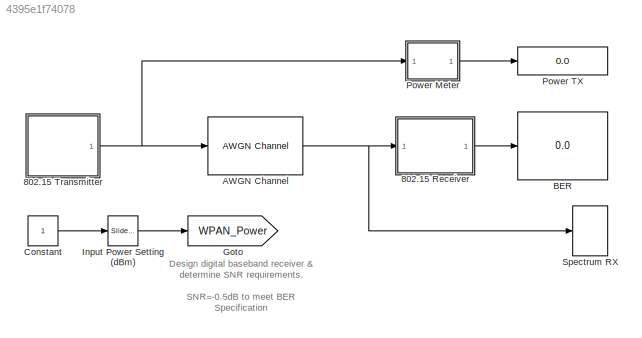
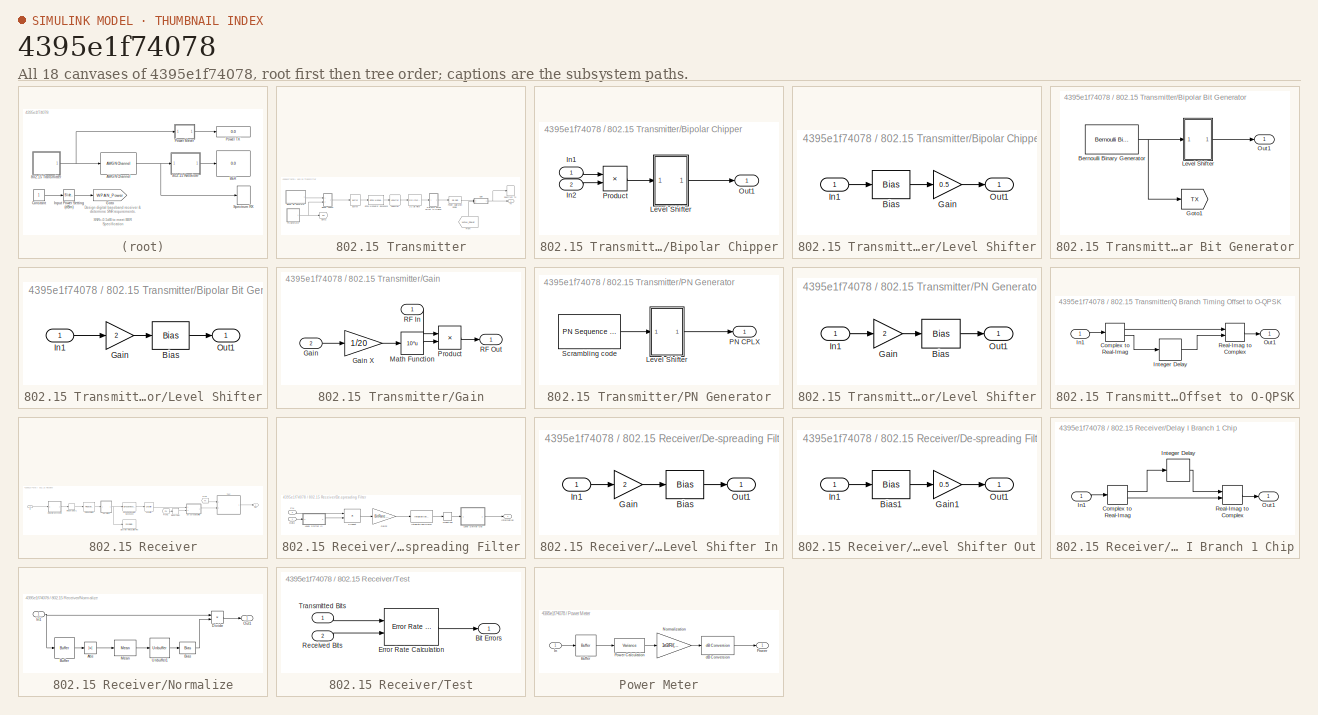
[diagram: thumbnail index - all 18 canvases of the model, root first then tree order]
MODEL slx_4395e1f74078
KIND model
CONFIG AbsTol = auto
CONFIG EnableMultiTasking = on
CONFIG FixedStep = 1/(PSF_SampPerSym*Rsymbol*2)
CONFIG InitFcn = x=linspace(0,1,OS);\nweights=sin(pi*x);
CONFIG MaxStep = auto
CONFIG MinStep = auto
CONFIG PreLoadFcn = %Rates\nBitRate=250e3;\nChipRate=2e6;\nSymRate=ChipRate/2;\nRX_ChipDelay=6;\n\n\n%Pulse shaping filter\nOS=32;\n\n%Input Power\nPin=-40;\n\nSNR=-0.5;\n\nfc_RF=2450e6;
CONFIG RelTol = 1e-3
CONFIG SampleTimeConstraint = Unconstrained
CONFIG Solver = VariableStepDiscrete
CONFIG SolverName = VariableStepDiscrete
CONFIG StartTime = 0.0
CONFIG StopTime = inf
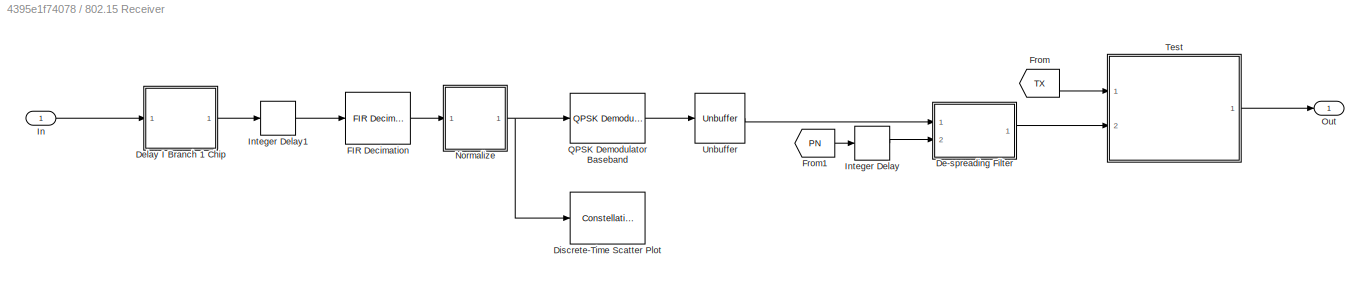
BLOCK [SubSystem] 802.15 Receiver
  Ports = [1, 1]
  RequestExecContextInheritance = off
  Variant = off
BLOCK [SubSystem] 802.15 Receiver/De-spreading Filter
  Ports = [2, 1]
  RequestExecContextInheritance = off
  Variant = off
BLOCK [Inport] 802.15 Receiver/De-spreading Filter/Data
  IconDisplay = Port number
BLOCK [Gain] 802.15 Receiver/De-spreading Filter/Gain2
  Gain = BitRate/ChipRate
BLOCK [Outport] 802.15 Receiver/De-spreading Filter/Information
  IconDisplay = Port number
BLOCK [Reference] 802.15 Receiver/De-spreading Filter/Integrate and Dump  REF=commfilt2/Integrate
and Dump
  Ports = [1, 1]
  SourceBlock = commfilt2/Integrate\nand Dump
  SourceProductBaseCode = CM
  SourceProductName = Communications System Toolbox
  SourceType = Integrate and Dump
BLOCK [SubSystem] 802.15 Receiver/De-spreading Filter/Level Shifter In
  Ports = [1, 1]
  RequestExecContextInheritance = off
  Variant = off
BLOCK [Bias] 802.15 Receiver/De-spreading Filter/Level Shifter In/Bias
  Bias = -1
  SaturateOnIntegerOverflow = off
BLOCK [Gain] 802.15 Receiver/De-spreading Filter/Level Shifter In/Gain
  Gain = 2
  OutDataTypeStr = Inherit: Inherit via internal rule
  ParamDataTypeStr = Inherit: Inherit via internal rule
  SaturateOnIntegerOverflow = off
BLOCK [Inport] 802.15 Receiver/De-spreading Filter/Level Shifter In/In1
  IconDisplay = Port number
BLOCK [Outport] 802.15 Receiver/De-spreading Filter/Level Shifter In/Out1
  IconDisplay = Port number
BLOCK [SubSystem] 802.15 Receiver/De-spreading Filter/Level Shifter Out
  Ports = [1, 1]
  RequestExecContextInheritance = off
  Variant = off
BLOCK [Bias] 802.15 Receiver/De-spreading Filter/Level Shifter Out/Bias1
  Bias = 1
  SaturateOnIntegerOverflow = off
BLOCK [Gain] 802.15 Receiver/De-spreading Filter/Level Shifter Out/Gain1
  Gain = 0.5
  OutDataTypeStr = Inherit: Inherit via internal rule
  ParamDataTypeStr = Inherit: Inherit via internal rule
  SaturateOnIntegerOverflow = off
BLOCK [Inport] 802.15 Receiver/De-spreading Filter/Level Shifter Out/In1
  IconDisplay = Port number
BLOCK [Outport] 802.15 Receiver/De-spreading Filter/Level Shifter Out/Out1
  IconDisplay = Port number
BLOCK [Inport] 802.15 Receiver/De-spreading Filter/PN
  IconDisplay = Port number
  Port = 2
BLOCK [Product] 802.15 Receiver/De-spreading Filter/Product
  InputSameDT = off
  OutDataTypeStr = Inherit: Inherit via internal rule
  Ports = [2, 1]
  SaturateOnIntegerOverflow = off
BLOCK [Signum] 802.15 Receiver/De-spreading Filter/Quantizer
BLOCK [SubSystem] 802.15 Receiver/Delay I Branch 1 Chip
  Ports = [1, 1]
  RequestExecContextInheritance = off
  Variant = off
BLOCK [ComplexToRealImag] 802.15 Receiver/Delay I Branch 1 Chip/Complex to Real-Imag
  Ports = [1, 2]
BLOCK [Inport] 802.15 Receiver/Delay I Branch 1 Chip/In1
  IconDisplay = Port number
BLOCK [Delay] 802.15 Receiver/Delay I Branch 1 Chip/Integer Delay
  DelayLength = OS/2
  InputPortMap = u0
  Ports = [1, 1]
  UserDataPersistent = on
BLOCK [Outport] 802.15 Receiver/Delay I Branch 1 Chip/Out1
  IconDisplay = Port number
BLOCK [RealImagToComplex] 802.15 Receiver/Delay I Branch 1 Chip/Real-Imag to Complex
  Ports = [2, 1]
BLOCK [ConstellationDiagram] 802.15 Receiver/Discrete-Time Scatter Plot
  Ports = [1]
  ScopeSpecificationString = comm.scopes.ConstellationDiagramBlockCfg('CurrentConfiguration', extmgr.ConfigurationSet(extmgr.Configuration('Core','General UI',true,'ShowConfiguration',true),extmgr.Configuration('Core','Source UI',true,'ShowPlaybackCmdMode',false),extmgr.Configuration('Sources','Workspace',false),extmgr.Configuration('Sources','File',false),extmgr.Configuration('Sources','Simulink',false),extmgr.Configuration(...<+1693ch>
  Tag = ScatterPlot
BLOCK [Reference] 802.15 Receiver/FIR Decimation  REF=dspmlti4/FIR
Decimation
  Ports = [1, 1]
  SourceBlock = dspmlti4/FIR\nDecimation
  SourceProductBaseCode = DS
  SourceProductName = DSP System Toolbox
  SourceType = FIR Decimation
  UserDataPersistent = on
BLOCK [From] 802.15 Receiver/From
  GotoTag = TX
  TagVisibility = global
BLOCK [From] 802.15 Receiver/From1
  GotoTag = PN
  TagVisibility = global
BLOCK [Inport] 802.15 Receiver/In
  IconDisplay = Port number
BLOCK [Delay] 802.15 Receiver/Integer Delay
  DelayLength = RX_ChipDelay
  InputPortMap = u0
  Ports = [1, 1]
  UserDataPersistent = on
BLOCK [Delay] 802.15 Receiver/Integer Delay1
  DelayLength = OS/2-1
  InputPortMap = u0
  Ports = [1, 1]
  UserDataPersistent = on
BLOCK [SubSystem] 802.15 Receiver/Normalize
  Ports = [1, 1]
  RequestExecContextInheritance = off
  Variant = off
BLOCK [Abs] 802.15 Receiver/Normalize/Abs
  SaturateOnIntegerOverflow = off
BLOCK [Bias] 802.15 Receiver/Normalize/Bias
  Bias = eps
  SaturateOnIntegerOverflow = off
BLOCK [Buffer] 802.15 Receiver/Normalize/Buffer
BLOCK [Product] 802.15 Receiver/Normalize/Divide
  InputSameDT = off
  Inputs = */
  OutDataTypeStr = Inherit: Inherit via internal rule
  Ports = [2, 1]
  RndMeth = Floor
  SaturateOnIntegerOverflow = off
BLOCK [Inport] 802.15 Receiver/Normalize/In1
  IconDisplay = Port number
BLOCK [Reference] 802.15 Receiver/Normalize/Mean  REF=dspstat3/Mean
  Ports = [1, 1]
  SourceBlock = dspstat3/Mean
  SourceProductBaseCode = DS
  SourceProductName = DSP System Toolbox
  SourceType = Mean
  UserDataPersistent = on
BLOCK [Outport] 802.15 Receiver/Normalize/Out1
  IconDisplay = Port number
BLOCK [Unbuffer] 802.15 Receiver/Normalize/Unbuffer1
  Ports = [1, 1]
BLOCK [Outport] 802.15 Receiver/Out
  IconDisplay = Port number
BLOCK [Reference] 802.15 Receiver/QPSK Demodulator Baseband  REF=commdigbbndpm3/QPSK
Demodulator
Baseband
  Ports = [1, 1]
  SourceBlock = commdigbbndpm3/QPSK\nDemodulator\nBaseband
  SourceProductBaseCode = CM
  SourceProductName = Communications System Toolbox
  SourceType = QPSK Demodulator Baseband
BLOCK [SubSystem] 802.15 Receiver/Test
  Ports = [2, 1]
  RequestExecContextInheritance = off
  Variant = off
BLOCK [Outport] 802.15 Receiver/Test/Bit Errors
  IconDisplay = Port number
BLOCK [Reference] 802.15 Receiver/Test/Error Rate Calculation  REF=commsink2/Error Rate
Calculation
  Ports = [2, 1]
  SourceBlock = commsink2/Error Rate\nCalculation
  SourceProductBaseCode = CM
  SourceProductName = Communications System Toolbox
  SourceType = Error Rate Calculation
BLOCK [Inport] 802.15 Receiver/Test/Received Bits
  IconDisplay = Port number
  Port = 2
BLOCK [Inport] 802.15 Receiver/Test/Transmitted Bits
  IconDisplay = Port number
BLOCK [Unbuffer] 802.15 Receiver/Unbuffer
  Ports = [1, 1]
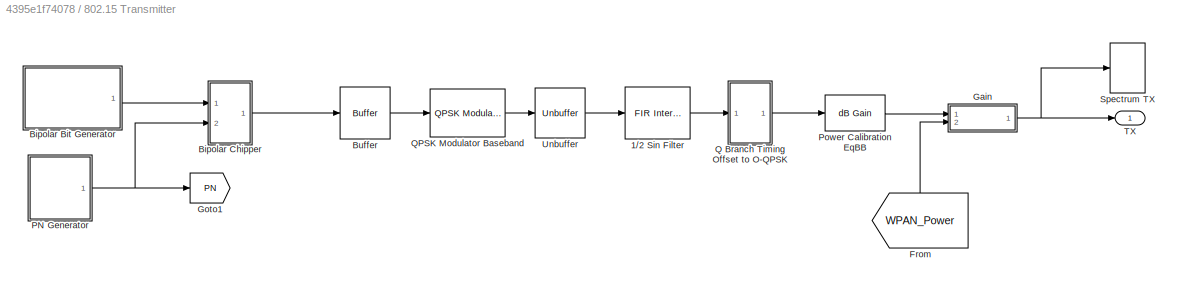
BLOCK [SubSystem] 802.15 Transmitter
  Ports = [0, 1]
  RequestExecContextInheritance = off
  Variant = off
BLOCK [Reference] 802.15 Transmitter/1//2 Sin Filter  REF=dspmlti4/FIR
Interpolation
  Ports = [1, 1]
  SourceBlock = dspmlti4/FIR\nInterpolation
  SourceProductBaseCode = DS
  SourceProductName = DSP System Toolbox
  SourceType = FIR Interpolation
  UserDataPersistent = on
BLOCK [SubSystem] 802.15 Transmitter/Bipolar Bit Generator
  Ports = [0, 1]
  RequestExecContextInheritance = off
  Variant = off
BLOCK [Reference] 802.15 Transmitter/Bipolar Bit Generator/Bernoulli Binary Generator  REF=commrandsrc2/Bernoulli Binary
Generator
  Ports = [0, 1]
  SourceBlock = commrandsrc2/Bernoulli Binary\nGenerator
  SourceType = Bernoulli Binary Generator
BLOCK [Goto] 802.15 Transmitter/Bipolar Bit Generator/Goto1
  GotoTag = TX
  TagVisibility = global
BLOCK [SubSystem] 802.15 Transmitter/Bipolar Bit Generator/Level Shifter
  Ports = [1, 1]
  RequestExecContextInheritance = off
  Variant = off
BLOCK [Bias] 802.15 Transmitter/Bipolar Bit Generator/Level Shifter/Bias
  Bias = -1
  SaturateOnIntegerOverflow = off
BLOCK [Gain] 802.15 Transmitter/Bipolar Bit Generator/Level Shifter/Gain
  Gain = 2
  OutDataTypeStr = Inherit: Inherit via internal rule
  ParamDataTypeStr = Inherit: Inherit via internal rule
  SaturateOnIntegerOverflow = off
BLOCK [Inport] 802.15 Transmitter/Bipolar Bit Generator/Level Shifter/In1
  IconDisplay = Port number
BLOCK [Outport] 802.15 Transmitter/Bipolar Bit Generator/Level Shifter/Out1
  IconDisplay = Port number
BLOCK [Outport] 802.15 Transmitter/Bipolar Bit Generator/Out1
  IconDisplay = Port number
BLOCK [SubSystem] 802.15 Transmitter/Bipolar Chipper
  Ports = [2, 1]
  RequestExecContextInheritance = off
  Variant = off
BLOCK [Inport] 802.15 Transmitter/Bipolar Chipper/In1
  IconDisplay = Port number
BLOCK [Inport] 802.15 Transmitter/Bipolar Chipper/In2
  IconDisplay = Port number
  Port = 2
BLOCK [SubSystem] 802.15 Transmitter/Bipolar Chipper/Level Shifter
  Ports = [1, 1]
  RequestExecContextInheritance = off
  Variant = off
BLOCK [Bias] 802.15 Transmitter/Bipolar Chipper/Level Shifter/Bias
  Bias = 1
  SaturateOnIntegerOverflow = off
BLOCK [Gain] 802.15 Transmitter/Bipolar Chipper/Level Shifter/Gain
  Gain = 0.5
  OutDataTypeStr = Inherit: Inherit via internal rule
  ParamDataTypeStr = Inherit: Inherit via internal rule
  SaturateOnIntegerOverflow = off
BLOCK [Inport] 802.15 Transmitter/Bipolar Chipper/Level Shifter/In1
  IconDisplay = Port number
BLOCK [Outport] 802.15 Transmitter/Bipolar Chipper/Level Shifter/Out1
  IconDisplay = Port number
BLOCK [Outport] 802.15 Transmitter/Bipolar Chipper/Out1
  IconDisplay = Port number
BLOCK [Product] 802.15 Transmitter/Bipolar Chipper/Product
  InputSameDT = off
  OutDataTypeStr = Inherit: Inherit via internal rule
  Ports = [2, 1]
  SaturateOnIntegerOverflow = off
BLOCK [Buffer] 802.15 Transmitter/Buffer
  N = 2
BLOCK [From] 802.15 Transmitter/From
  GotoTag = WPAN_Power
  TagVisibility = global
BLOCK [SubSystem] 802.15 Transmitter/Gain
  Ports = [2, 1]
  RequestExecContextInheritance = off
  Variant = off
BLOCK [Inport] 802.15 Transmitter/Gain/Gain
  IconDisplay = Port number
  Port = 2
BLOCK [Gain] 802.15 Transmitter/Gain/Gain X
  Gain = 1/20
  OutDataTypeStr = Inherit: Inherit via internal rule
  ParamDataTypeStr = Inherit: Inherit via internal rule
  SaturateOnIntegerOverflow = off
BLOCK [Math] 802.15 Transmitter/Gain/Math Function
  Operator = 10^u
  Ports = [1, 1]
BLOCK [Product] 802.15 Transmitter/Gain/Product
  InputSameDT = off
  OutDataTypeStr = Inherit: Inherit via internal rule
  Ports = [2, 1]
  SaturateOnIntegerOverflow = off
BLOCK [Inport] 802.15 Transmitter/Gain/RF In
  IconDisplay = Port number
BLOCK [Outport] 802.15 Transmitter/Gain/RF Out
  IconDisplay = Port number
BLOCK [Goto] 802.15 Transmitter/Goto1
  GotoTag = PN
  TagVisibility = global
BLOCK [SubSystem] 802.15 Transmitter/PN Generator
  Ports = [0, 1]
  RequestExecContextInheritance = off
  Variant = off
BLOCK [SubSystem] 802.15 Transmitter/PN Generator/Level Shifter
  Ports = [1, 1]
  RequestExecContextInheritance = off
  Variant = off
BLOCK [Bias] 802.15 Transmitter/PN Generator/Level Shifter/Bias
  Bias = -1
  SaturateOnIntegerOverflow = off
BLOCK [Gain] 802.15 Transmitter/PN Generator/Level Shifter/Gain
  Gain = 2
  OutDataTypeStr = Inherit: Inherit via internal rule
  ParamDataTypeStr = Inherit: Inherit via internal rule
  SaturateOnIntegerOverflow = off
BLOCK [Inport] 802.15 Transmitter/PN Generator/Level Shifter/In1
  IconDisplay = Port number
BLOCK [Outport] 802.15 Transmitter/PN Generator/Level Shifter/Out1
  IconDisplay = Port number
BLOCK [Outport] 802.15 Transmitter/PN Generator/PN CPLX
  IconDisplay = Port number
BLOCK [Reference] 802.15 Transmitter/PN Generator/Scrambling code  REF=commseqgen2/PN Sequence
Generator
  Ports = [0, 1]
  SourceBlock = commseqgen2/PN Sequence\nGenerator
  SourceType = PN Sequence Generator
BLOCK [Reference] 802.15 Transmitter/Power Calibration EqBB  REF=dspmathops/dB Gain
  Ports = [1, 1]
  SourceBlock = dspmathops/dB Gain
  SourceProductBaseCode = DS
  SourceProductName = DSP System Toolbox
  SourceType = dB Gain
BLOCK [SubSystem] 802.15 Transmitter/Q Branch Timing Offset to O-QPSK
  Ports = [1, 1]
  RequestExecContextInheritance = off
  Variant = off
BLOCK [ComplexToRealImag] 802.15 Transmitter/Q Branch Timing Offset to O-QPSK/Complex to Real-Imag
  Ports = [1, 2]
BLOCK [Inport] 802.15 Transmitter/Q Branch Timing Offset to O-QPSK/In1
  IconDisplay = Port number
BLOCK [Delay] 802.15 Transmitter/Q Branch Timing Offset to O-QPSK/Integer Delay
  DelayLength = OS/2
  InputPortMap = u0
  Ports = [1, 1]
  UserDataPersistent = on
BLOCK [Outport] 802.15 Transmitter/Q Branch Timing Offset to O-QPSK/Out1
  IconDisplay = Port number
BLOCK [RealImagToComplex] 802.15 Transmitter/Q Branch Timing Offset to O-QPSK/Real-Imag to Complex
  Ports = [2, 1]
BLOCK [Reference] 802.15 Transmitter/QPSK Modulator Baseband  REF=commdigbbndpm3/QPSK
Modulator
Baseband
  Ports = [1, 1]
  SourceBlock = commdigbbndpm3/QPSK\nModulator\nBaseband
  SourceProductBaseCode = CM
  SourceProductName = Communications System Toolbox
  SourceType = QPSK Modulator Baseband
BLOCK [SpectrumAnalyzer] 802.15 Transmitter/Spectrum TX
  NumInputPorts = 1
  Ports = [1]
  ScopeSpecificationString = spbscopes.SpectrumAnalyzerBlockCfg('CurrentConfiguration', extmgr.ConfigurationSet(extmgr.Configuration('Core','General UI',true,'DisplayFullSourceName',true,'FigureColor',[0.156862745098039 0.156862745098039 0.156862745098039]),extmgr.Configuration('Core','Source UI',true),extmgr.Configuration('Sources','WiredSimulink',true),extmgr.Configuration('Visuals','Spectrum',true,'AxesProperties',struct('...<+2152ch>
BLOCK [Outport] 802.15 Transmitter/TX
  IconDisplay = Port number
BLOCK [Unbuffer] 802.15 Transmitter/Unbuffer
  Ports = [1, 1]
BLOCK [Reference] AWGN Channel  REF=commchan3/AWGN
Channel
  Ports = [1, 1]
  SourceBlock = commchan3/AWGN\nChannel
  SourceProductBaseCode = CM
  SourceProductName = Communications System Toolbox
  SourceType = AWGN Channel
  UserDataPersistent = on
BLOCK [Display] BER
  Decimation = 1
  Ports = [1]
BLOCK [Constant] Constant
BLOCK [Goto] Goto
  GotoTag = WPAN_Power
  TagVisibility = global
BLOCK [Reference] Input Power Setting (dBm)  REF=simulink/Math
Operations/Slider
Gain
  Ports = [1, 1]
  SourceBlock = simulink/Math\nOperations/Slider\nGain
  SourceProductBaseCode = SL
  SourceProductName = Simulink
  SourceType = Slider Gain
BLOCK [SubSystem] Power Meter
  Ports = [1, 1]
  RequestExecContextInheritance = off
  Variant = off
BLOCK [Buffer] Power Meter/Buffer
  N = buffer_sz
BLOCK [Inport] Power Meter/In
  IconDisplay = Port number
BLOCK [Gain] Power Meter/Normalization
  Gain = 1e3/R/(1+PB)
  OutDataTypeStr = Inherit: Inherit via internal rule
  ParamDataTypeStr = Inherit: Inherit via internal rule
  SaturateOnIntegerOverflow = off
BLOCK [Outport] Power Meter/Power
  IconDisplay = Port number
BLOCK [Reference] Power Meter/Power Calculation  REF=dspstat3/Variance
  Ports = [1, 1]
  SourceBlock = dspstat3/Variance
  SourceProductBaseCode = DS
  SourceProductName = DSP System Toolbox
  SourceType = Variance
  UserDataPersistent = on
BLOCK [Reference] Power Meter/dB Conversion  REF=dspmathops/dB Conversion
  Ports = [1, 1]
  SourceBlock = dspmathops/dB Conversion
  SourceProductBaseCode = DS
  SourceProductName = DSP System Toolbox
  SourceType = dB Conversion
BLOCK [Display] Power TX
  Decimation = 1
  Ports = [1]
BLOCK [SpectrumAnalyzer] Spectrum RX
  NumInputPorts = 1
  Ports = [1]
  ScopeSpecificationString = spbscopes.SpectrumAnalyzerBlockCfg('CurrentConfiguration', extmgr.ConfigurationSet(extmgr.Configuration('Core','General UI',true,'DisplayFullSourceName',true,'FigureColor',[0.156862745098039 0.156862745098039 0.156862745098039]),extmgr.Configuration('Core','Source UI',true),extmgr.Configuration('Sources','WiredSimulink',true),extmgr.Configuration('Visuals','Spectrum',true,'AxesProperties',struct('...<+2066ch>
ANNOTATION (root): Design digital baseband receiver & determine SNR requirements.
ANNOTATION (root): SNR=-0.5dB to meet BER Specification
LINE 802.15 Receiver/De-spreading Filter/Data:1 -> 802.15 Receiver/De-spreading Filter/Level Shifter In:1
LINE 802.15 Receiver/De-spreading Filter/Gain2:1 -> 802.15 Receiver/De-spreading Filter/Integrate and Dump:1
LINE 802.15 Receiver/De-spreading Filter/Integrate and Dump:1 -> 802.15 Receiver/De-spreading Filter/Quantizer:1
LINE 802.15 Receiver/De-spreading Filter/Level Shifter In/Bias:1 -> 802.15 Receiver/De-spreading Filter/Level Shifter In/Out1:1
LINE 802.15 Receiver/De-spreading Filter/Level Shifter In/Gain:1 -> 802.15 Receiver/De-spreading Filter/Level Shifter In/Bias:1
LINE 802.15 Receiver/De-spreading Filter/Level Shifter In/In1:1 -> 802.15 Receiver/De-spreading Filter/Level Shifter In/Gain:1
LINE 802.15 Receiver/De-spreading Filter/Level Shifter In:1 -> 802.15 Receiver/De-spreading Filter/Product:2
LINE 802.15 Receiver/De-spreading Filter/Level Shifter Out/Bias1:1 -> 802.15 Receiver/De-spreading Filter/Level Shifter Out/Gain1:1
LINE 802.15 Receiver/De-spreading Filter/Level Shifter Out/Gain1:1 -> 802.15 Receiver/De-spreading Filter/Level Shifter Out/Out1:1
LINE 802.15 Receiver/De-spreading Filter/Level Shifter Out/In1:1 -> 802.15 Receiver/De-spreading Filter/Level Shifter Out/Bias1:1
LINE 802.15 Receiver/De-spreading Filter/Level Shifter Out:1 -> 802.15 Receiver/De-spreading Filter/Information:1
LINE 802.15 Receiver/De-spreading Filter/PN:1 -> 802.15 Receiver/De-spreading Filter/Product:1
LINE 802.15 Receiver/De-spreading Filter/Product:1 -> 802.15 Receiver/De-spreading Filter/Gain2:1
LINE 802.15 Receiver/De-spreading Filter/Quantizer:1 -> 802.15 Receiver/De-spreading Filter/Level Shifter Out:1
LINE 802.15 Receiver/De-spreading Filter:1 -> 802.15 Receiver/Test:2
LINE 802.15 Receiver/Delay I Branch 1 Chip/Complex to Real-Imag:1 -> 802.15 Receiver/Delay I Branch 1 Chip/Integer Delay:1
LINE 802.15 Receiver/Delay I Branch 1 Chip/Complex to Real-Imag:2 -> 802.15 Receiver/Delay I Branch 1 Chip/Real-Imag to Complex:2
LINE 802.15 Receiver/Delay I Branch 1 Chip/In1:1 -> 802.15 Receiver/Delay I Branch 1 Chip/Complex to Real-Imag:1
LINE 802.15 Receiver/Delay I Branch 1 Chip/Integer Delay:1 -> 802.15 Receiver/Delay I Branch 1 Chip/Real-Imag to Complex:1
LINE 802.15 Receiver/Delay I Branch 1 Chip/Real-Imag to Complex:1 -> 802.15 Receiver/Delay I Branch 1 Chip/Out1:1
LINE 802.15 Receiver/Delay I Branch 1 Chip:1 -> 802.15 Receiver/Integer Delay1:1
LINE 802.15 Receiver/FIR Decimation:1 -> 802.15 Receiver/Normalize:1
LINE 802.15 Receiver/From1:1 -> 802.15 Receiver/Integer Delay:1
LINE 802.15 Receiver/From:1 -> 802.15 Receiver/Test:1
LINE 802.15 Receiver/In:1 -> 802.15 Receiver/Delay I Branch 1 Chip:1
LINE 802.15 Receiver/Integer Delay1:1 -> 802.15 Receiver/FIR Decimation:1
LINE 802.15 Receiver/Integer Delay:1 -> 802.15 Receiver/De-spreading Filter:2
LINE 802.15 Receiver/Normalize/Abs:1 -> 802.15 Receiver/Normalize/Mean:1
LINE 802.15 Receiver/Normalize/Bias:1 -> 802.15 Receiver/Normalize/Divide:2
LINE 802.15 Receiver/Normalize/Buffer:1 -> 802.15 Receiver/Normalize/Abs:1
LINE 802.15 Receiver/Normalize/Divide:1 -> 802.15 Receiver/Normalize/Out1:1
NET 802.15 Receiver/Normalize/In1:1 -> 802.15 Receiver/Normalize/Buffer:1, 802.15 Receiver/Normalize/Divide:1
LINE 802.15 Receiver/Normalize/Mean:1 -> 802.15 Receiver/Normalize/Unbuffer1:1
LINE 802.15 Receiver/Normalize/Unbuffer1:1 -> 802.15 Receiver/Normalize/Bias:1
NET 802.15 Receiver/Normalize:1 -> 802.15 Receiver/Discrete-Time Scatter Plot:1, 802.15 Receiver/QPSK Demodulator Baseband:1
LINE 802.15 Receiver/QPSK Demodulator Baseband:1 -> 802.15 Receiver/Unbuffer:1
LINE 802.15 Receiver/Test/Error Rate Calculation:1 -> 802.15 Receiver/Test/Bit Errors:1
LINE 802.15 Receiver/Test/Received Bits:1 -> 802.15 Receiver/Test/Error Rate Calculation:2
LINE 802.15 Receiver/Test/Transmitted Bits:1 -> 802.15 Receiver/Test/Error Rate Calculation:1
LINE 802.15 Receiver/Test:1 -> 802.15 Receiver/Out:1
LINE 802.15 Receiver/Unbuffer:1 -> 802.15 Receiver/De-spreading Filter:1
LINE 802.15 Receiver:1 -> BER:1
LINE 802.15 Transmitter/1//2 Sin Filter:1 -> 802.15 Transmitter/Q Branch Timing Offset to O-QPSK:1
NET 802.15 Transmitter/Bipolar Bit Generator/Bernoulli Binary Generator:1 -> 802.15 Transmitter/Bipolar Bit Generator/Goto1:1, 802.15 Transmitter/Bipolar Bit Generator/Level Shifter:1
LINE 802.15 Transmitter/Bipolar Bit Generator/Level Shifter/Bias:1 -> 802.15 Transmitter/Bipolar Bit Generator/Level Shifter/Out1:1
LINE 802.15 Transmitter/Bipolar Bit Generator/Level Shifter/Gain:1 -> 802.15 Transmitter/Bipolar Bit Generator/Level Shifter/Bias:1
LINE 802.15 Transmitter/Bipolar Bit Generator/Level Shifter/In1:1 -> 802.15 Transmitter/Bipolar Bit Generator/Level Shifter/Gain:1
LINE 802.15 Transmitter/Bipolar Bit Generator/Level Shifter:1 -> 802.15 Transmitter/Bipolar Bit Generator/Out1:1
LINE 802.15 Transmitter/Bipolar Bit Generator:1 -> 802.15 Transmitter/Bipolar Chipper:1
LINE 802.15 Transmitter/Bipolar Chipper/In1:1 -> 802.15 Transmitter/Bipolar Chipper/Product:1
LINE 802.15 Transmitter/Bipolar Chipper/In2:1 -> 802.15 Transmitter/Bipolar Chipper/Product:2
LINE 802.15 Transmitter/Bipolar Chipper/Level Shifter/Bias:1 -> 802.15 Transmitter/Bipolar Chipper/Level Shifter/Gain:1
LINE 802.15 Transmitter/Bipolar Chipper/Level Shifter/Gain:1 -> 802.15 Transmitter/Bipolar Chipper/Level Shifter/Out1:1
LINE 802.15 Transmitter/Bipolar Chipper/Level Shifter/In1:1 -> 802.15 Transmitter/Bipolar Chipper/Level Shifter/Bias:1
LINE 802.15 Transmitter/Bipolar Chipper/Level Shifter:1 -> 802.15 Transmitter/Bipolar Chipper/Out1:1
LINE 802.15 Transmitter/Bipolar Chipper/Product:1 -> 802.15 Transmitter/Bipolar Chipper/Level Shifter:1
LINE 802.15 Transmitter/Bipolar Chipper:1 -> 802.15 Transmitter/Buffer:1
LINE 802.15 Transmitter/Buffer:1 -> 802.15 Transmitter/QPSK Modulator Baseband:1
LINE 802.15 Transmitter/From:1 -> 802.15 Transmitter/Gain:2
LINE 802.15 Transmitter/Gain/Gain X:1 -> 802.15 Transmitter/Gain/Math Function:1
LINE 802.15 Transmitter/Gain/Gain:1 -> 802.15 Transmitter/Gain/Gain X:1
LINE 802.15 Transmitter/Gain/Math Function:1 -> 802.15 Transmitter/Gain/Product:2
LINE 802.15 Transmitter/Gain/Product:1 -> 802.15 Transmitter/Gain/RF Out:1
LINE 802.15 Transmitter/Gain/RF In:1 -> 802.15 Transmitter/Gain/Product:1
NET 802.15 Transmitter/Gain:1 -> 802.15 Transmitter/Spectrum TX:1, 802.15 Transmitter/TX:1
LINE 802.15 Transmitter/PN Generator/Level Shifter/Bias:1 -> 802.15 Transmitter/PN Generator/Level Shifter/Out1:1
LINE 802.15 Transmitter/PN Generator/Level Shifter/Gain:1 -> 802.15 Transmitter/PN Generator/Level Shifter/Bias:1
LINE 802.15 Transmitter/PN Generator/Level Shifter/In1:1 -> 802.15 Transmitter/PN Generator/Level Shifter/Gain:1
LINE 802.15 Transmitter/PN Generator/Level Shifter:1 -> 802.15 Transmitter/PN Generator/PN CPLX:1
LINE 802.15 Transmitter/PN Generator/Scrambling code:1 -> 802.15 Transmitter/PN Generator/Level Shifter:1
NET 802.15 Transmitter/PN Generator:1 -> 802.15 Transmitter/Bipolar Chipper:2, 802.15 Transmitter/Goto1:1
LINE 802.15 Transmitter/Power Calibration EqBB:1 -> 802.15 Transmitter/Gain:1
LINE 802.15 Transmitter/Q Branch Timing Offset to O-QPSK/Complex to Real-Imag:1 -> 802.15 Transmitter/Q Branch Timing Offset to O-QPSK/Real-Imag to Complex:1
LINE 802.15 Transmitter/Q Branch Timing Offset to O-QPSK/Complex to Real-Imag:2 -> 802.15 Transmitter/Q Branch Timing Offset to O-QPSK/Integer Delay:1
LINE 802.15 Transmitter/Q Branch Timing Offset to O-QPSK/In1:1 -> 802.15 Transmitter/Q Branch Timing Offset to O-QPSK/Complex to Real-Imag:1
LINE 802.15 Transmitter/Q Branch Timing Offset to O-QPSK/Integer Delay:1 -> 802.15 Transmitter/Q Branch Timing Offset to O-QPSK/Real-Imag to Complex:2
LINE 802.15 Transmitter/Q Branch Timing Offset to O-QPSK/Real-Imag to Complex:1 -> 802.15 Transmitter/Q Branch Timing Offset to O-QPSK/Out1:1
LINE 802.15 Transmitter/Q Branch Timing Offset to O-QPSK:1 -> 802.15 Transmitter/Power Calibration EqBB:1
LINE 802.15 Transmitter/QPSK Modulator Baseband:1 -> 802.15 Transmitter/Unbuffer:1
LINE 802.15 Transmitter/Unbuffer:1 -> 802.15 Transmitter/1//2 Sin Filter:1
NET 802.15 Transmitter:1 -> AWGN Channel:1, Power Meter:1
NET AWGN Channel:1 -> 802.15 Receiver:1, Spectrum RX:1
LINE Constant:1 -> Input Power Setting (dBm):1
LINE Input Power Setting (dBm):1 -> Goto:1
LINE Power Meter/Buffer:1 -> Power Meter/Power Calculation:1
LINE Power Meter/In:1 -> Power Meter/Buffer:1
LINE Power Meter/Normalization:1 -> Power Meter/dB Conversion:1
LINE Power Meter/Power Calculation:1 -> Power Meter/Normalization:1
LINE Power Meter/dB Conversion:1 -> Power Meter/Power:1
LINE Power Meter:1 -> Power TX:1
note: NET lines group one-source signal fan-out (src -> all destinations, sorted); 1:1 wires keep LINE
